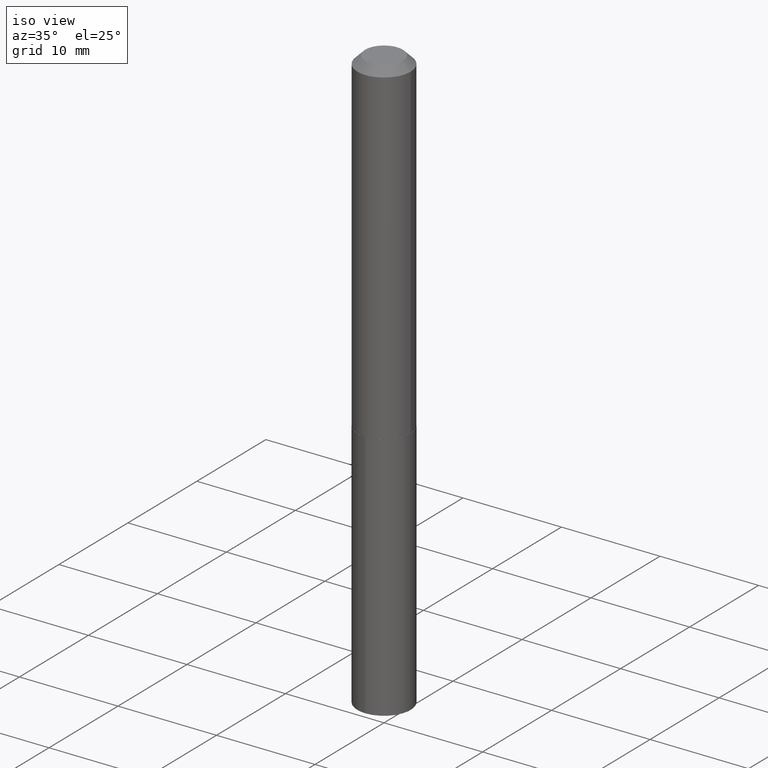
[diagram: clean part render]
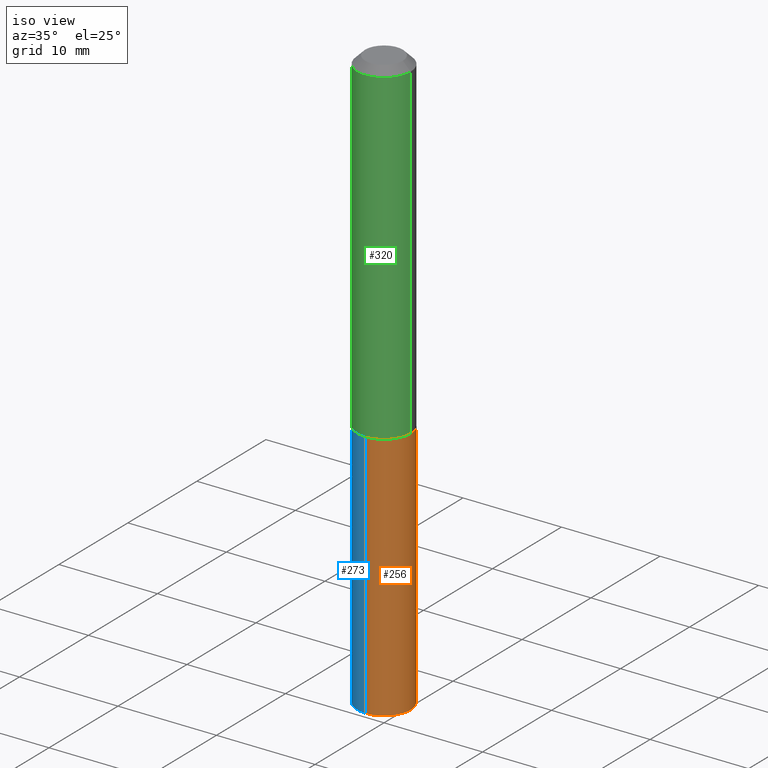
[diagram: same view with three faces highlighted in distinct colors, each labeled with its STEP entity id]
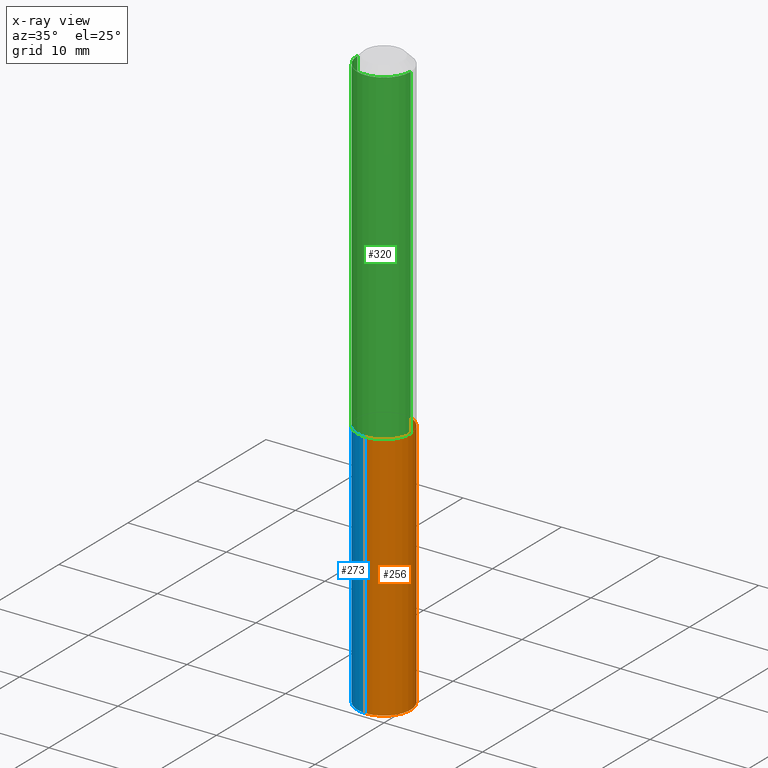
[diagram: x-ray of the same camera — body ghosted, the three highlighted faces saturated]
A machine part, iso view with three faces highlighted in distinct colors.
The next image is the same camera in x-ray (body ghosted, the three faces saturated) — at least one of them is partly hidden behind the body in this view.
Their STEP definitions:

[orange] entity #256 — the highlighted cylindrical surface (edge-blend (fillet) strip) has radius 2.7051 mm, axis along (-0, 0, 1).
#8 = DIRECTION ( 'NONE',  ( -2.445549265505865349E-29, 3.491366116516402154E-15, 1.000000000000000000 ) ) ;
#16 = CARTESIAN_POINT ( 'NONE',  ( 7.567280135845637736E-16, 0.1064999999999953206, -1.338000000000000300 ) ) ;
#36 = CARTESIAN_POINT ( 'NONE',  ( 7.567280135845393189E-16, 0.1064999999999953206, -1.338000000000000300 ) ) ;
#46 = CIRCLE ( 'NONE', #262, 0.1064999999999999974 ) ;
#63 = CARTESIAN_POINT ( 'NONE',  ( -7.436855251735545052E-16, -0.1065000000000046743, -1.337999999999999856 ) ) ;
#89 = ORIENTED_EDGE ( 'NONE', *, *, #247, .F. ) ;
#108 = VERTEX_POINT ( 'NONE', #243 ) ;
#126 = DIRECTION ( 'NONE',  ( -2.445549265505865349E-29, 3.491366116516402154E-15, 1.000000000000000000 ) ) ;
#127 = ORIENTED_EDGE ( 'NONE', *, *, #178, .F. ) ;
#137 = DIRECTION ( 'NONE',  ( -6.982962677686265133E-15, -1.000000000000000000, 2.565115487008698002E-15 ) ) ;
#160 = CARTESIAN_POINT ( 'NONE',  ( -7.436855251735545052E-16, -0.1065000000000046743, -1.337999999999999856 ) ) ;
#164 = VERTEX_POINT ( 'NONE', #16 ) ;
#175 = VECTOR ( 'NONE', #126, 39.37007874015748143 ) ;
#176 = CIRCLE ( 'NONE', #254, 0.1064999999999999974 ) ;
#178 = EDGE_CURVE ( 'NONE', #359, #356, #309, .T. ) ;
#192 = EDGE_LOOP ( 'NONE', ( #287, #277, #89, #127 ) ) ;
#195 = CARTESIAN_POINT ( 'NONE',  ( 5.713275440693733173E-29, -8.156813463134189614E-15, -2.336237170050650125 ) ) ;
#202 = EDGE_CURVE ( 'NONE', #108, #164, #377, .T. ) ;
#208 = DIRECTION ( 'NONE',  ( -2.445549265505865068E-29, 3.491366116516402154E-15, 1.000000000000000000 ) ) ;
#213 = CYLINDRICAL_SURFACE ( 'NONE', #217, 0.1064999999999999974 ) ;
#217 = AXIS2_PLACEMENT_3D ( 'NONE', #327, #219, #297 ) ;
#219 = DIRECTION ( 'NONE',  ( -2.445549265505865068E-29, 3.491366116516402154E-15, 1.000000000000000000 ) ) ;
#235 = CARTESIAN_POINT ( 'NONE',  ( 3.272037262675712888E-29, -4.671602031372128143E-15, -1.338000000000000078 ) ) ;
#243 = CARTESIAN_POINT ( 'NONE',  ( 7.567280135845635764E-16, 0.1064999999999918096, -2.336237170050650125 ) ) ;
#245 = CARTESIAN_POINT ( 'NONE',  ( -7.436855251735300505E-16, -0.1065000000000081160, -2.336237170050649681 ) ) ;
#247 = EDGE_CURVE ( 'NONE', #356, #164, #46, .T. ) ;
#254 = AXIS2_PLACEMENT_3D ( 'NONE', #195, #372, #344 ) ;
#256 = ADVANCED_FACE ( 'NONE', ( #301 ), #213, .T. ) ;
#262 = AXIS2_PLACEMENT_3D ( 'NONE', #235, #208, #137 ) ;
#277 = ORIENTED_EDGE ( 'NONE', *, *, #202, .T. ) ;
#287 = ORIENTED_EDGE ( 'NONE', *, *, #385, .T. ) ;
#297 = DIRECTION ( 'NONE',  ( -6.982962677686265133E-15, -1.000000000000000000, 2.565115487008698002E-15 ) ) ;
#301 = FACE_OUTER_BOUND ( 'NONE', #192, .T. ) ;
#309 = LINE ( 'NONE', #160, #175 ) ;
#327 = CARTESIAN_POINT ( 'NONE',  ( 3.272037262675712888E-29, -4.671602031372128143E-15, -1.338000000000000078 ) ) ;
#339 = VECTOR ( 'NONE', #8, 39.37007874015748143 ) ;
#344 = DIRECTION ( 'NONE',  ( -6.982962677686265133E-15, -1.000000000000000000, 2.565115487008698002E-15 ) ) ;
#356 = VERTEX_POINT ( 'NONE', #63 ) ;
#359 = VERTEX_POINT ( 'NONE', #245 ) ;
#372 = DIRECTION ( 'NONE',  ( -2.445549265505865068E-29, 3.491366116516402154E-15, 1.000000000000000000 ) ) ;
#377 = LINE ( 'NONE', #36, #339 ) ;
#385 = EDGE_CURVE ( 'NONE', #359, #108, #176, .T. ) ;

[blue] entity #273 — the highlighted cylindrical surface (edge-blend (fillet) strip) has radius 2.7051 mm, axis along (-0, 0, 1).
#7 = CIRCLE ( 'NONE', #116, 0.1064999999999999974 ) ;
#8 = DIRECTION ( 'NONE',  ( -2.445549265505865349E-29, 3.491366116516402154E-15, 1.000000000000000000 ) ) ;
#16 = CARTESIAN_POINT ( 'NONE',  ( 7.567280135845637736E-16, 0.1064999999999953206, -1.338000000000000300 ) ) ;
#29 = AXIS2_PLACEMENT_3D ( 'NONE', #255, #142, #382 ) ;
#30 = DIRECTION ( 'NONE',  ( -2.445549265505865068E-29, 3.491366116516402154E-15, 1.000000000000000000 ) ) ;
#36 = CARTESIAN_POINT ( 'NONE',  ( 7.567280135845393189E-16, 0.1064999999999953206, -1.338000000000000300 ) ) ;
#38 = DIRECTION ( 'NONE',  ( -6.982962677686265133E-15, -1.000000000000000000, 2.565115487008698002E-15 ) ) ;
#61 = FACE_OUTER_BOUND ( 'NONE', #197, .T. ) ;
#63 = CARTESIAN_POINT ( 'NONE',  ( -7.436855251735545052E-16, -0.1065000000000046743, -1.337999999999999856 ) ) ;
#65 = AXIS2_PLACEMENT_3D ( 'NONE', #286, #134, #316 ) ;
#108 = VERTEX_POINT ( 'NONE', #243 ) ;
#113 = CYLINDRICAL_SURFACE ( 'NONE', #29, 0.1064999999999999974 ) ;
#116 = AXIS2_PLACEMENT_3D ( 'NONE', #200, #30, #38 ) ;
#126 = DIRECTION ( 'NONE',  ( -2.445549265505865349E-29, 3.491366116516402154E-15, 1.000000000000000000 ) ) ;
#134 = DIRECTION ( 'NONE',  ( -2.445549265505865068E-29, 3.491366116516402154E-15, 1.000000000000000000 ) ) ;
#142 = DIRECTION ( 'NONE',  ( -2.445549265505865068E-29, 3.491366116516402154E-15, 1.000000000000000000 ) ) ;
#154 = ORIENTED_EDGE ( 'NONE', *, *, #178, .T. ) ;
#160 = CARTESIAN_POINT ( 'NONE',  ( -7.436855251735545052E-16, -0.1065000000000046743, -1.337999999999999856 ) ) ;
#164 = VERTEX_POINT ( 'NONE', #16 ) ;
#175 = VECTOR ( 'NONE', #126, 39.37007874015748143 ) ;
#178 = EDGE_CURVE ( 'NONE', #359, #356, #309, .T. ) ;
#197 = EDGE_LOOP ( 'NONE', ( #258, #268, #154, #349 ) ) ;
#200 = CARTESIAN_POINT ( 'NONE',  ( 5.713275440693733173E-29, -8.156813463134189614E-15, -2.336237170050650125 ) ) ;
#202 = EDGE_CURVE ( 'NONE', #108, #164, #377, .T. ) ;
#225 = EDGE_CURVE ( 'NONE', #108, #359, #7, .T. ) ;
#234 = EDGE_CURVE ( 'NONE', #164, #356, #282, .T. ) ;
#243 = CARTESIAN_POINT ( 'NONE',  ( 7.567280135845635764E-16, 0.1064999999999918096, -2.336237170050650125 ) ) ;
#245 = CARTESIAN_POINT ( 'NONE',  ( -7.436855251735300505E-16, -0.1065000000000081160, -2.336237170050649681 ) ) ;
#255 = CARTESIAN_POINT ( 'NONE',  ( 3.272037262675712888E-29, -4.671602031372128143E-15, -1.338000000000000078 ) ) ;
#258 = ORIENTED_EDGE ( 'NONE', *, *, #202, .F. ) ;
#268 = ORIENTED_EDGE ( 'NONE', *, *, #225, .T. ) ;
#273 = ADVANCED_FACE ( 'NONE', ( #61 ), #113, .T. ) ;
#282 = CIRCLE ( 'NONE', #65, 0.1064999999999999974 ) ;
#286 = CARTESIAN_POINT ( 'NONE',  ( 3.272037262675712888E-29, -4.671602031372128143E-15, -1.338000000000000078 ) ) ;
#309 = LINE ( 'NONE', #160, #175 ) ;
#316 = DIRECTION ( 'NONE',  ( -6.982962677686265133E-15, -1.000000000000000000, 2.565115487008698002E-15 ) ) ;
#339 = VECTOR ( 'NONE', #8, 39.37007874015748143 ) ;
#349 = ORIENTED_EDGE ( 'NONE', *, *, #234, .F. ) ;
#356 = VERTEX_POINT ( 'NONE', #63 ) ;
#359 = VERTEX_POINT ( 'NONE', #245 ) ;
#377 = LINE ( 'NONE', #36, #339 ) ;
#382 = DIRECTION ( 'NONE',  ( -6.982962677686265133E-15, -1.000000000000000000, 2.565115487008698002E-15 ) ) ;

[green] entity #320 — the highlighted cylindrical surface (edge-blend (fillet) strip) has radius 2.7051 mm, axis along (-0, 0, 1).
#1 = LINE ( 'NONE', #26, #91 ) ;
#2 = DIRECTION ( 'NONE',  ( -2.445468806185136597E-29, 3.491481338843145583E-15, 1.000000000000000000 ) ) ;
#4 = VERTEX_POINT ( 'NONE', #80 ) ;
#26 = CARTESIAN_POINT ( 'NONE',  ( -0.1065000000000000807, 7.567280135845072715E-16, -5.238665871121478096E-30 ) ) ;
#27 = CYLINDRICAL_SURFACE ( 'NONE', #300, 0.1065000000000000807 ) ;
#32 = DIRECTION ( 'NONE',  ( 1.000000000000000000, -6.982962677686267499E-15, 4.876176775795935232E-29 ) ) ;
#44 = EDGE_CURVE ( 'NONE', #150, #4, #331, .T. ) ;
#57 = CARTESIAN_POINT ( 'NONE',  ( 3.270814528272620647E-29, -4.669856290702708218E-15, -1.337500000000000133 ) ) ;
#64 = DIRECTION ( 'NONE',  ( -2.445468806185136877E-29, 3.491481338843145188E-15, 1.000000000000000000 ) ) ;
#68 = ORIENTED_EDGE ( 'NONE', *, *, #343, .T. ) ;
#69 = ORIENTED_EDGE ( 'NONE', *, *, #44, .F. ) ;
#80 = CARTESIAN_POINT ( 'NONE',  ( 0.1065000000000000113, -8.527943170124366394E-16, -0.03125000000000020817 ) ) ;
#91 = VECTOR ( 'NONE', #146, 39.37007874015748143 ) ;
#115 = DIRECTION ( 'NONE',  ( -2.445468806185136597E-29, 3.491481338843145583E-15, 1.000000000000000000 ) ) ;
#118 = CARTESIAN_POINT ( 'NONE',  ( -0.1065000000000000113, -1.632754527686270697E-15, -0.03125000000000020817 ) ) ;
#124 = EDGE_CURVE ( 'NONE', #145, #189, #292, .T. ) ;
#145 = VERTEX_POINT ( 'NONE', #248 ) ;
#146 = DIRECTION ( 'NONE',  ( -2.445468806185136877E-29, 3.491481338843145188E-15, 1.000000000000000000 ) ) ;
#150 = VERTEX_POINT ( 'NONE', #118 ) ;
#151 = DIRECTION ( 'NONE',  ( 1.000000000000000000, -6.982962677686262766E-15, 0.000000000000000000 ) ) ;
#157 = AXIS2_PLACEMENT_3D ( 'NONE', #251, #2, #191 ) ;
#185 = LINE ( 'NONE', #190, #210 ) ;
#189 = VERTEX_POINT ( 'NONE', #194 ) ;
#190 = CARTESIAN_POINT ( 'NONE',  ( 0.1065000000000000807, -7.436855251735880318E-16, 5.193128266222675235E-30 ) ) ;
#191 = DIRECTION ( 'NONE',  ( 1.000000000000000000, -6.982962677686267499E-15, 0.000000000000000000 ) ) ;
#194 = CARTESIAN_POINT ( 'NONE',  ( 0.1065000000000001640, -5.413541815876296348E-15, -1.337500000000000133 ) ) ;
#209 = ORIENTED_EDGE ( 'NONE', *, *, #352, .F. ) ;
#210 = VECTOR ( 'NONE', #64, 39.37007874015748143 ) ;
#216 = DIRECTION ( 'NONE',  ( -2.445468806185136597E-29, 3.491481338843145583E-15, 1.000000000000000000 ) ) ;
#223 = EDGE_LOOP ( 'NONE', ( #209, #367, #68, #69 ) ) ;
#248 = CARTESIAN_POINT ( 'NONE',  ( -0.1065000000000001640, -3.913128277118200453E-15, -1.337500000000000133 ) ) ;
#251 = CARTESIAN_POINT ( 'NONE',  ( 7.642090019328602662E-31, -1.091087918388490267E-16, -0.03125000000000020817 ) ) ;
#276 = FACE_OUTER_BOUND ( 'NONE', #223, .T. ) ;
#292 = CIRCLE ( 'NONE', #294, 0.1065000000000001640 ) ;
#294 = AXIS2_PLACEMENT_3D ( 'NONE', #57, #115, #151 ) ;
#300 = AXIS2_PLACEMENT_3D ( 'NONE', #342, #216, #32 ) ;
#320 = ADVANCED_FACE ( 'NONE', ( #276 ), #27, .T. ) ;
#331 = CIRCLE ( 'NONE', #157, 0.1065000000000000113 ) ;
#342 = CARTESIAN_POINT ( 'NONE',  ( 0.000000000000000000, 0.000000000000000000, 0.000000000000000000 ) ) ;
#343 = EDGE_CURVE ( 'NONE', #189, #4, #185, .T. ) ;
#352 = EDGE_CURVE ( 'NONE', #145, #150, #1, .T. ) ;
#367 = ORIENTED_EDGE ( 'NONE', *, *, #124, .T. ) ;